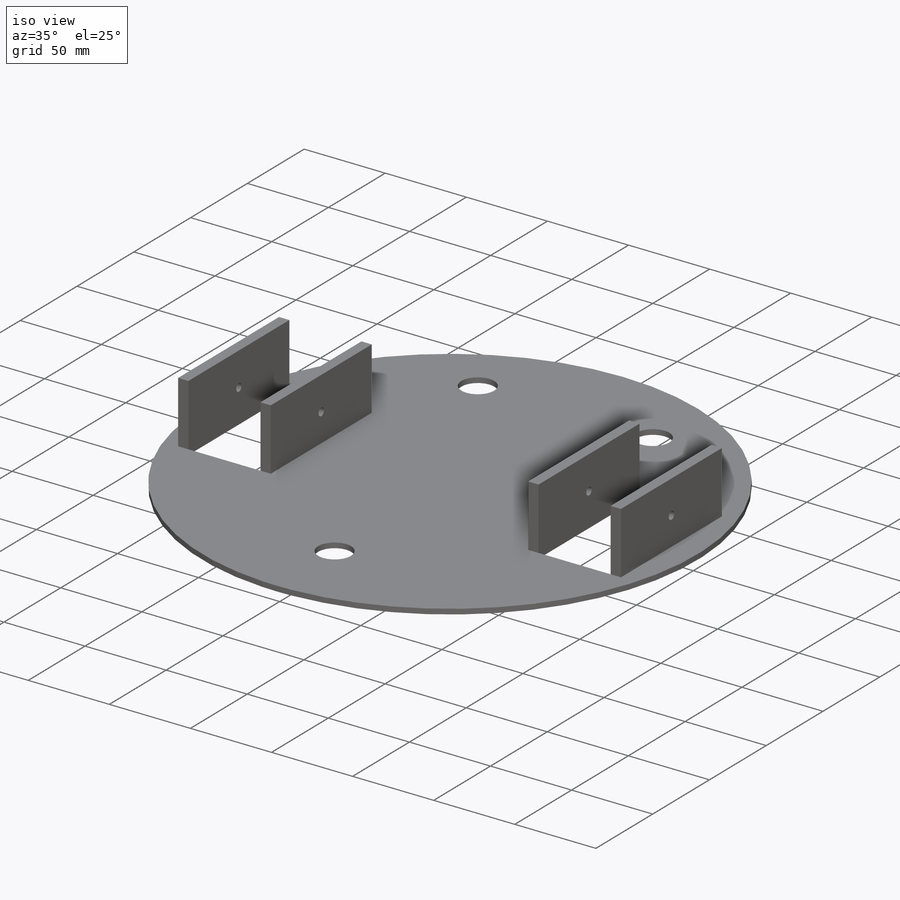
[diagram: iso view]
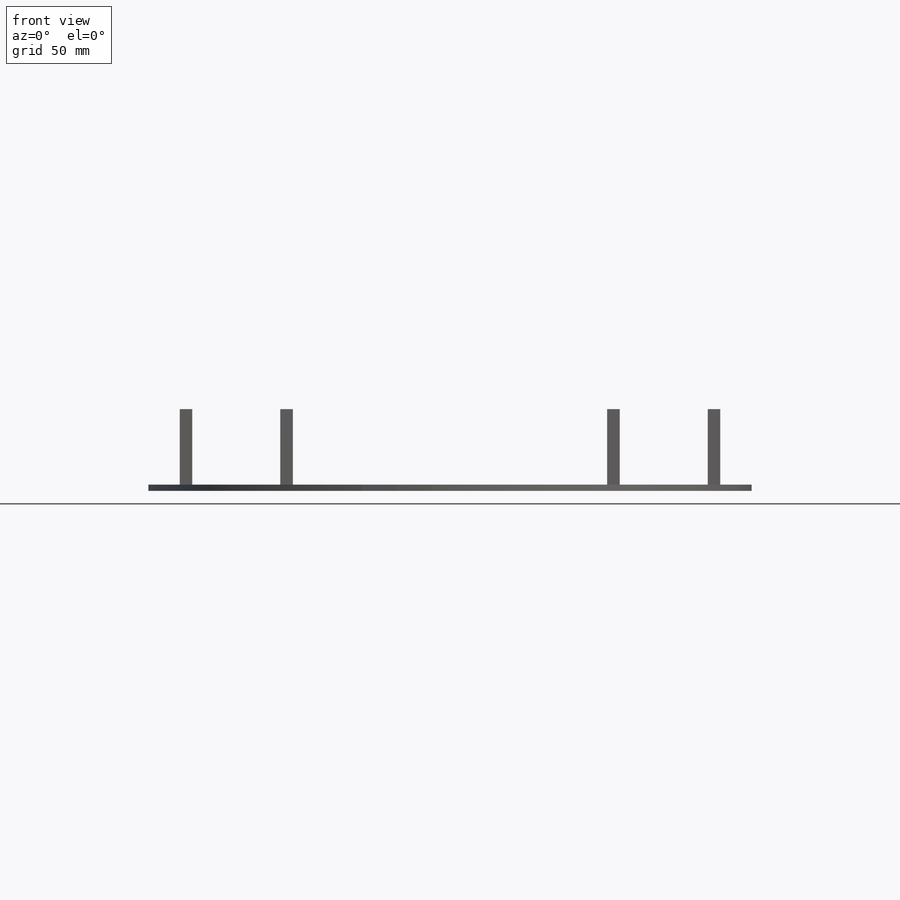
[diagram: front view]
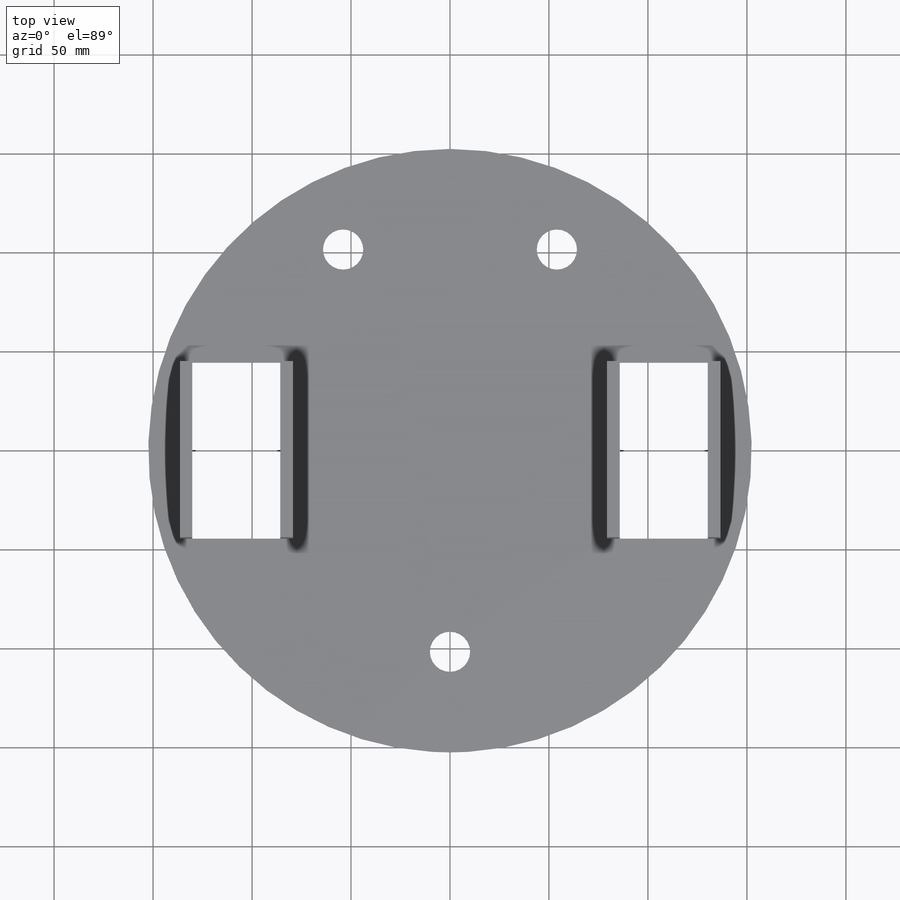
[diagram: top view]
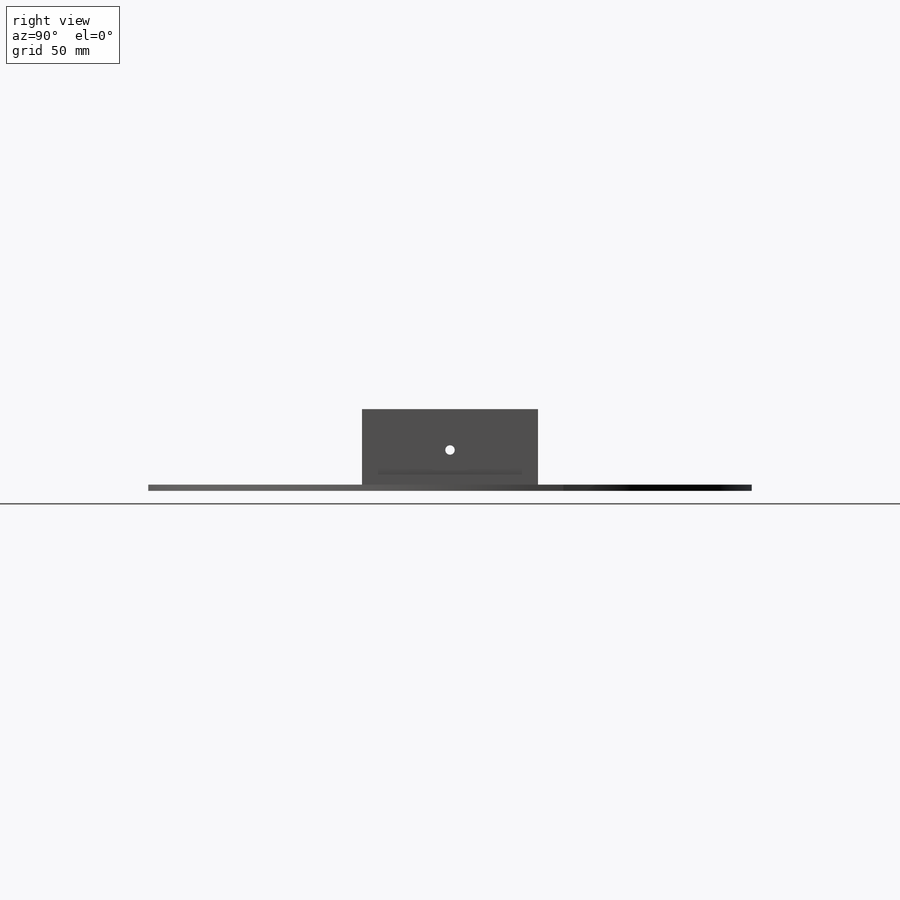
[diagram: right view]
SOLIDWORKS PART (.sldprt)
format: sldprt  version: not decoded by parser v0  size: 215,040 bytes
history: native  units: mm
features: sketch x5, cut_extrude x3, extrude x2, material x1, mirror x1 (+11 scaffold rows collapsed)
feature tree (23):
  scaffold x11  (default folders/planes/origin — collapsed)
  material  "Material <not specified>"
  sketch  "Sketch1"  dims[D1=304.8mm]
  extrude  "Boss-Extrude1"  Depth=3.175mm
  sketch  "Sketch2"  dims[c1.D1=~193.147735mm c2.D1=90.0deg c3.D1=171.45mm c3.D2=88.9mm c3.D3=44.45mm]
  cut_extrude  "Cut-Extrude1"  [1 undecoded]
  sketch  "Sketch3"  dims[D1=6.35mm D2=6.35mm]
  extrude  "Boss-Extrude2"  Depth=38.1mm
  mirror  "Mirror1"
  sketch  "Sketch4"  dims[D2=4.7625mm D1=20.6375mm]
  cut_extrude  "Cut-Extrude2"  [1 undecoded]
  sketch  "Sketch5"  dims[D5=20.32mm D6=20.32mm D7=20.32mm D1=50.8mm D2=101.6mm D3=152.4mm D4=50.8mm D8=107.95mm D9=53.975mm]
  cut_extrude  "Cut-Extrude3"  [1 undecoded]
decode coverage: 7 of 11 modeling features carry decoded parameters
note: ~ marks probable driven/reference dimensions
note: 3 parameter values undecoded
summary: no parameter record found for 3 features
note: suppression state not decoded; provenance and decode notes live in map.json
